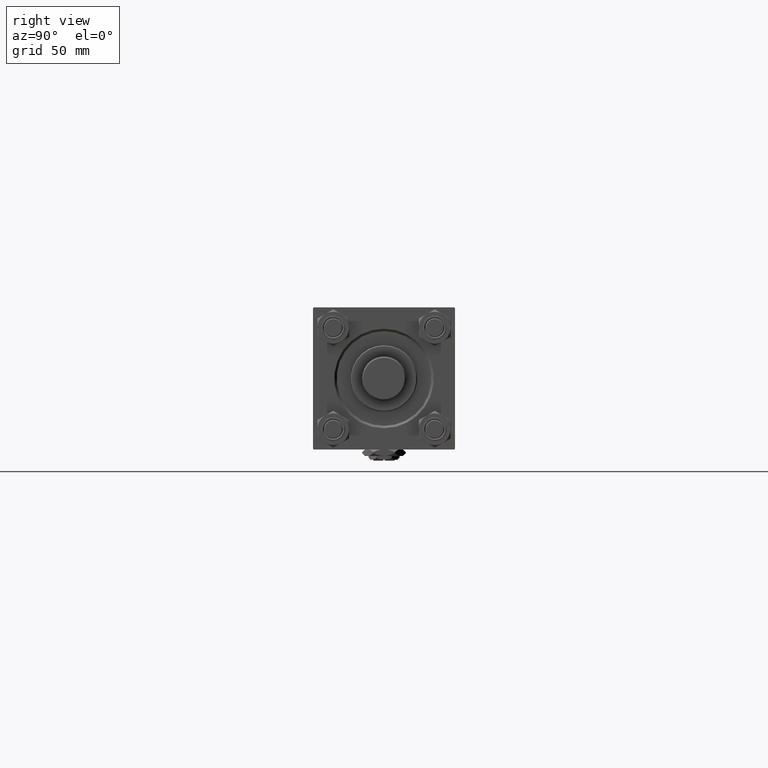
[diagram: clean part render]
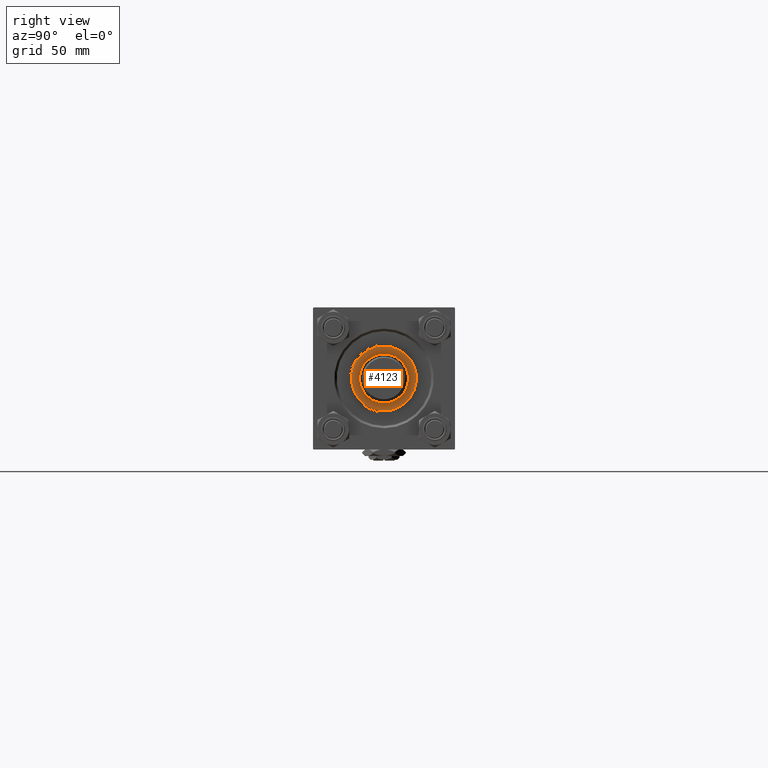
[diagram: same view with one face highlighted and labeled with its STEP entity id]
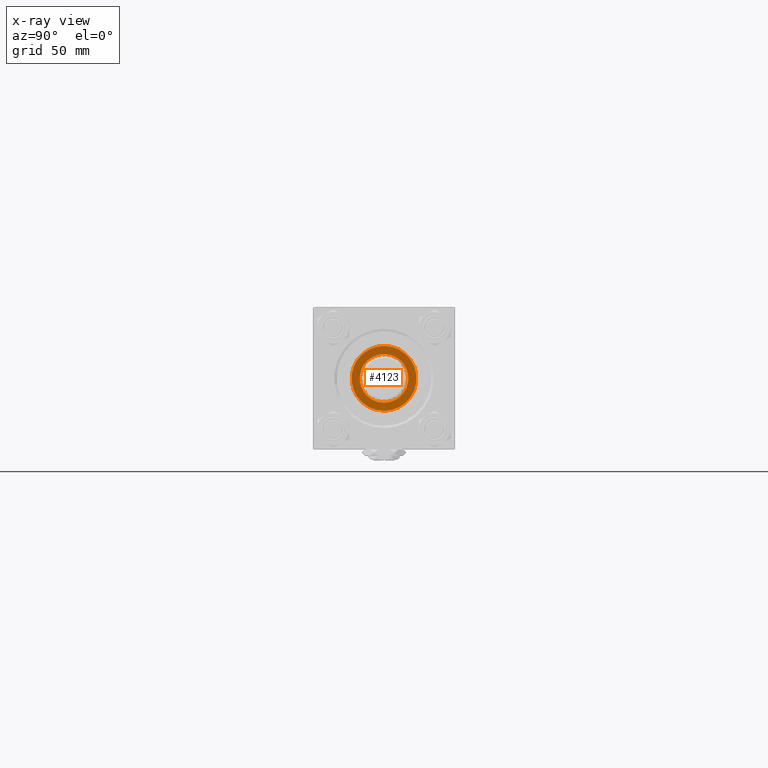
[diagram: x-ray of the same camera — body ghosted, the highlighted face saturated]
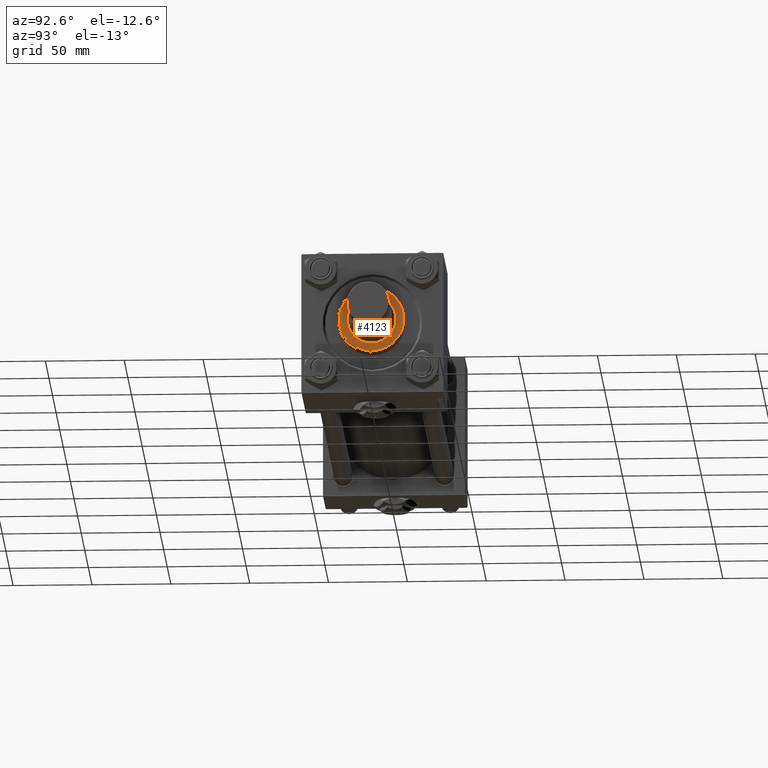
[diagram: same view with one face highlighted and labeled with its STEP entity id]
A machine part, right view. The second image highlights one B-rep face of the part: STEP entity #4123.
The next image is the same camera in x-ray: the body ghosted, the highlighted face saturated — about 0% of this face is hidden behind the body in this view.
A second angle (auxiliary view) of the same face is appended — the face is thin or edge-on in the first view.
In plain terms, the highlighted planar face has unit normal (1, 0, -0).
Its self-contained STEP definition (entity closure, byte-faithful):
#748 = ORIENTED_EDGE ( 'NONE', *, *, #47355, .F. ) ;
#939 = VERTEX_POINT ( 'NONE', #28570 ) ;
#2231 = EDGE_CURVE ( 'NONE', #5993, #31515, #19913, .T. ) ;
#2998 = AXIS2_PLACEMENT_3D ( 'NONE', #30069, #46197, #9940 ) ;
#3303 = DIRECTION ( 'NONE',  ( 1.000000000000000000, 0.000000000000000000, 0.000000000000000000 ) ) ;
#4123 = ADVANCED_FACE ( 'NONE', ( #28353, #40769 ), #16688, .T. ) ;
#4668 = CARTESIAN_POINT ( 'NONE',  ( 0.000000000000000000, 0.000000000000000000, 39.69999999999999574 ) ) ;
#5615 = AXIS2_PLACEMENT_3D ( 'NONE', #4668, #40405, #44883 ) ;
#5722 = EDGE_LOOP ( 'NONE', ( #748, #45516 ) ) ;
#5935 = DIRECTION ( 'NONE',  ( 0.000000000000000000, 0.000000000000000000, 1.000000000000000000 ) ) ;
#5993 = VERTEX_POINT ( 'NONE', #46994 ) ;
#9940 = DIRECTION ( 'NONE',  ( 1.000000000000000000, 0.000000000000000000, 0.000000000000000000 ) ) ;
#10641 = AXIS2_PLACEMENT_3D ( 'NONE', #12717, #28873, #44995 ) ;
#12717 = CARTESIAN_POINT ( 'NONE',  ( 0.000000000000000000, 0.000000000000000000, 39.69999999999999574 ) ) ;
#13635 = CARTESIAN_POINT ( 'NONE',  ( 15.50000000000000000, 0.000000000000000000, 39.69999999999999574 ) ) ;
#16688 = PLANE ( 'NONE',  #10641 ) ;
#19913 = CIRCLE ( 'NONE', #2998, 15.50000000000000000 ) ;
#23324 = EDGE_CURVE ( 'NONE', #24807, #939, #27605, .T. ) ;
#24807 = VERTEX_POINT ( 'NONE', #34545 ) ;
#27605 = CIRCLE ( 'NONE', #47036, 20.50000000000000355 ) ;
#28353 = FACE_BOUND ( 'NONE', #5722, .T. ) ;
#28462 = CIRCLE ( 'NONE', #5615, 20.50000000000000355 ) ;
#28570 = CARTESIAN_POINT ( 'NONE',  ( -20.50000000000000355, 0.000000000000000000, 39.69999999999999574 ) ) ;
#28873 = DIRECTION ( 'NONE',  ( 0.000000000000000000, 0.000000000000000000, 1.000000000000000000 ) ) ;
#29006 = CARTESIAN_POINT ( 'NONE',  ( 0.000000000000000000, 0.000000000000000000, 39.69999999999999574 ) ) ;
#30069 = CARTESIAN_POINT ( 'NONE',  ( 0.000000000000000000, 0.000000000000000000, 39.69999999999999574 ) ) ;
#30753 = ORIENTED_EDGE ( 'NONE', *, *, #51374, .T. ) ;
#30859 = CIRCLE ( 'NONE', #43504, 15.50000000000000000 ) ;
#31515 = VERTEX_POINT ( 'NONE', #13635 ) ;
#34046 = EDGE_LOOP ( 'NONE', ( #30753, #50616 ) ) ;
#34545 = CARTESIAN_POINT ( 'NONE',  ( 20.50000000000000355, 2.541142108230758269E-15, 39.69999999999999574 ) ) ;
#40405 = DIRECTION ( 'NONE',  ( 0.000000000000000000, 0.000000000000000000, 1.000000000000000000 ) ) ;
#40769 = FACE_OUTER_BOUND ( 'NONE', #34046, .T. ) ;
#43504 = AXIS2_PLACEMENT_3D ( 'NONE', #44044, #44566, #3303 ) ;
#44044 = CARTESIAN_POINT ( 'NONE',  ( 0.000000000000000000, 0.000000000000000000, 39.69999999999999574 ) ) ;
#44566 = DIRECTION ( 'NONE',  ( 0.000000000000000000, 0.000000000000000000, 1.000000000000000000 ) ) ;
#44883 = DIRECTION ( 'NONE',  ( 1.000000000000000000, 0.000000000000000000, 0.000000000000000000 ) ) ;
#44995 = DIRECTION ( 'NONE',  ( 1.000000000000000000, 0.000000000000000000, -0.000000000000000000 ) ) ;
#45516 = ORIENTED_EDGE ( 'NONE', *, *, #2231, .F. ) ;
#46197 = DIRECTION ( 'NONE',  ( 0.000000000000000000, 0.000000000000000000, 1.000000000000000000 ) ) ;
#46994 = CARTESIAN_POINT ( 'NONE',  ( -15.50000000000000000, 1.898202538678397557E-15, 39.69999999999999574 ) ) ;
#47036 = AXIS2_PLACEMENT_3D ( 'NONE', #29006, #5935, #49857 ) ;
#47355 = EDGE_CURVE ( 'NONE', #31515, #5993, #30859, .T. ) ;
#49857 = DIRECTION ( 'NONE',  ( 1.000000000000000000, 0.000000000000000000, 0.000000000000000000 ) ) ;
#50616 = ORIENTED_EDGE ( 'NONE', *, *, #23324, .T. ) ;
#51374 = EDGE_CURVE ( 'NONE', #939, #24807, #28462, .T. ) ;